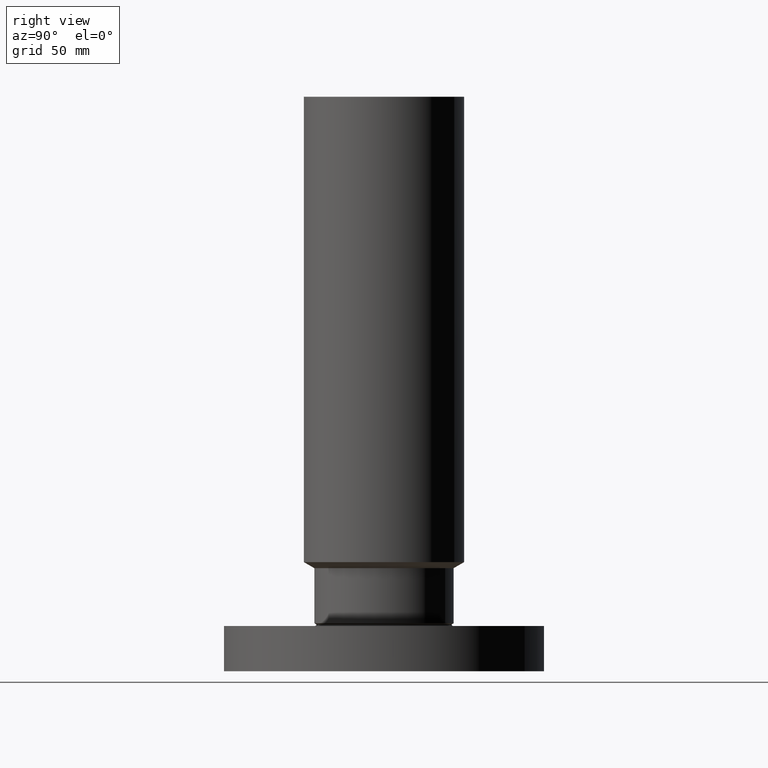
[diagram: clean part render]
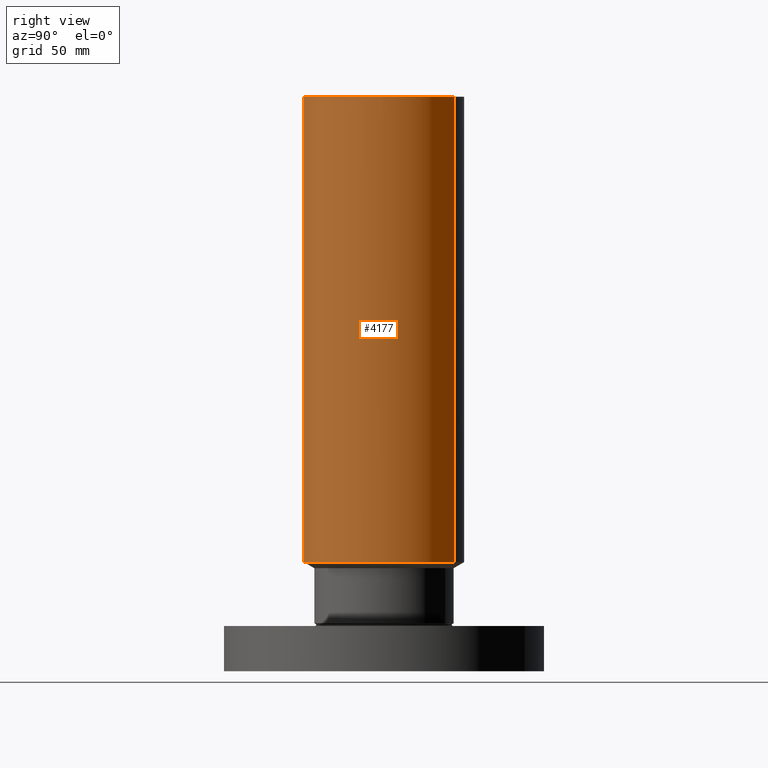
[diagram: same view with one face highlighted and labeled with its STEP entity id]
A machine part, right view. The second image highlights one B-rep face of the part: STEP entity #4177.
In plain terms, the highlighted cylindrical surface (partial cylindrical patch) has radius 30.988 mm, axis along (0, 0, -1).
Its self-contained STEP definition (entity closure, byte-faithful):
#1275=AXIS2_PLACEMENT_3D('Circle Axis2P3D',#1273,#1274,$) ;
#4150=AXIS2_PLACEMENT_3D('Cylinder Axis2P3D',#4147,#4148,#4149) ;
#4161=AXIS2_PLACEMENT_3D('Circle Axis2P3D',#4159,#4160,$) ;
#1270=CARTESIAN_POINT('Vertex',(0.584899157099,1.07065072551,1.66237604308)) ;
#1273=CARTESIAN_POINT('Axis2P3D Location',(0.,0.,1.66237604308)) ;
#1277=CARTESIAN_POINT('Vertex',(-0.584899157099,-1.07065072551,1.66237604308)) ;
#4147=CARTESIAN_POINT('Axis2P3D Location',(0.,0.,4.25000000002)) ;
#4152=CARTESIAN_POINT('Line Origine',(0.584899157099,1.07065072551,5.20618802156)) ;
#4156=CARTESIAN_POINT('Vertex',(0.584899157099,1.07065072551,8.75000000004)) ;
#4159=CARTESIAN_POINT('Axis2P3D Location',(0.,0.,8.75000000003)) ;
#4163=CARTESIAN_POINT('Vertex',(-0.584899157099,-1.07065072551,8.75000000004)) ;
#4166=CARTESIAN_POINT('Line Origine',(-0.584899157099,-1.07065072551,5.20618802156)) ;
#1274=DIRECTION('Axis2P3D Direction',(-0.,0.,0.0393700787402)) ;
#4148=DIRECTION('Axis2P3D Direction',(0.,0.,-0.0393700787402)) ;
#4149=DIRECTION('Axis2P3D XDirection',(-0.0188750212049,-0.0345504945626,0.)) ;
#4153=DIRECTION('Vector Direction',(0.,0.,-0.0393700787402)) ;
#4160=DIRECTION('Axis2P3D Direction',(0.,0.,-0.0393700787402)) ;
#4167=DIRECTION('Vector Direction',(0.,0.,-0.0393700787402)) ;
#4154=VECTOR('Line Direction',#4153,0.0393700787402) ;
#4168=VECTOR('Line Direction',#4167,0.0393700787402) ;
#4172=ORIENTED_EDGE('',*,*,#1279,.F.) ;
#4173=ORIENTED_EDGE('',*,*,#4158,.T.) ;
#4174=ORIENTED_EDGE('',*,*,#4165,.T.) ;
#4175=ORIENTED_EDGE('',*,*,#4170,.F.) ;
#4177=ADVANCED_FACE('PartBody',(#4176),#4151,.T.) ;
#1276=CIRCLE('generated circle',#1275,1.22) ;
#4162=CIRCLE('generated circle',#4161,1.22) ;
#4151=CYLINDRICAL_SURFACE('generated cylinder',#4150,1.22) ;
#1279=EDGE_CURVE('',#1271,#1278,#1276,.F.) ;
#4158=EDGE_CURVE('',#1271,#4157,#4155,.F.) ;
#4165=EDGE_CURVE('',#4157,#4164,#4162,.T.) ;
#4170=EDGE_CURVE('',#1278,#4164,#4169,.F.) ;
#4171=EDGE_LOOP('',(#4172,#4173,#4174,#4175)) ;
#4176=FACE_OUTER_BOUND('',#4171,.T.) ;
#4155=LINE('Line',#4152,#4154) ;
#4169=LINE('Line',#4166,#4168) ;
#1271=VERTEX_POINT('',#1270) ;
#1278=VERTEX_POINT('',#1277) ;
#4157=VERTEX_POINT('',#4156) ;
#4164=VERTEX_POINT('',#4163) ;